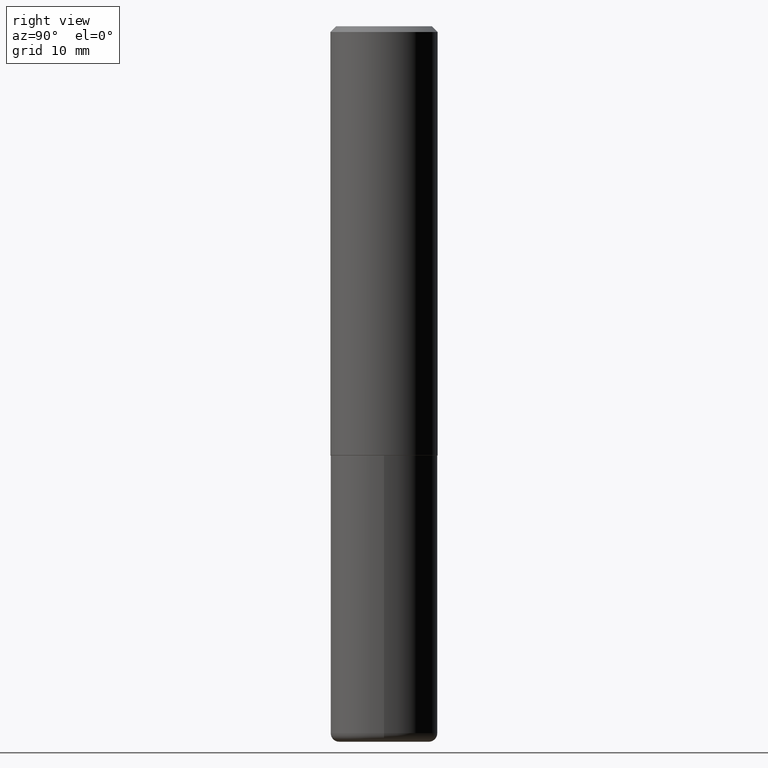
[diagram: clean part render]
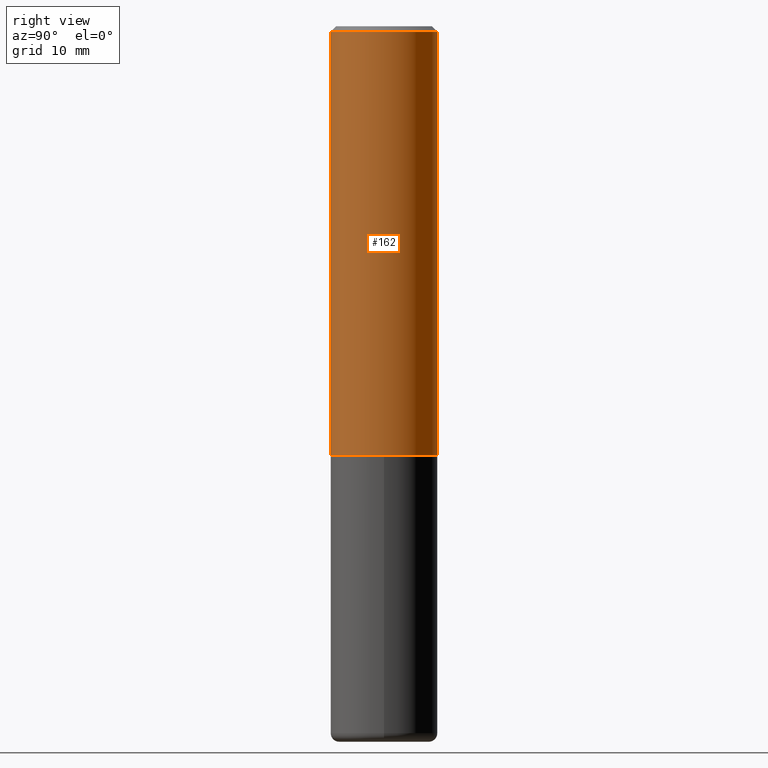
[diagram: same view with one face highlighted and labeled with its STEP entity id]
A machine part, right view. The second image highlights one B-rep face of the part: STEP entity #162.
In plain terms, the highlighted cylindrical surface (partial cylindrical patch) has radius 4.7625 mm, axis along (-0, 0, 1).
Its self-contained STEP definition (entity closure, byte-faithful):
#2 = EDGE_CURVE ( 'NONE', #31, #197, #258, .T. ) ;
#4 = CARTESIAN_POINT ( 'NONE',  ( 3.666321494475970828E-29, -5.232923199104616895E-15, -1.499000000000000110 ) ) ;
#31 = VERTEX_POINT ( 'NONE', #353 ) ;
#34 = DIRECTION ( 'NONE',  ( -6.982962677686266711E-15, -1.000000000000000000, 3.490942761243906423E-15 ) ) ;
#35 = VECTOR ( 'NONE', #391, 39.37007874015748143 ) ;
#52 = DIRECTION ( 'NONE',  ( -2.445844892912589156E-29, 3.490942761243906423E-15, 1.000000000000000000 ) ) ;
#58 = ORIENTED_EDGE ( 'NONE', *, *, #84, .T. ) ;
#69 = VERTEX_POINT ( 'NONE', #338 ) ;
#71 = AXIS2_PLACEMENT_3D ( 'NONE', #4, #104, #366 ) ;
#84 = EDGE_CURVE ( 'NONE', #197, #69, #226, .T. ) ;
#102 = ORIENTED_EDGE ( 'NONE', *, *, #108, .F. ) ;
#104 = DIRECTION ( 'NONE',  ( -2.445844892912588876E-29, 3.490942761243906817E-15, 1.000000000000000000 ) ) ;
#108 = EDGE_CURVE ( 'NONE', #136, #69, #299, .T. ) ;
#123 = CARTESIAN_POINT ( 'NONE',  ( 4.891689785825187560E-31, -6.981885522487828820E-17, -0.02000000000000004205 ) ) ;
#124 = AXIS2_PLACEMENT_3D ( 'NONE', #123, #256, #252 ) ;
#136 = VERTEX_POINT ( 'NONE', #336 ) ;
#143 = VECTOR ( 'NONE', #52, 39.37007874015748143 ) ;
#162 = ADVANCED_FACE ( 'NONE', ( #205 ), #273, .T. ) ;
#197 = VERTEX_POINT ( 'NONE', #296 ) ;
#205 = FACE_OUTER_BOUND ( 'NONE', #417, .T. ) ;
#226 = LINE ( 'NONE', #401, #143 ) ;
#244 = LINE ( 'NONE', #325, #35 ) ;
#247 = DIRECTION ( 'NONE',  ( -2.445844892912588876E-29, 3.490942761243906817E-15, 1.000000000000000000 ) ) ;
#251 = AXIS2_PLACEMENT_3D ( 'NONE', #358, #247, #34 ) ;
#252 = DIRECTION ( 'NONE',  ( -6.982962677686266711E-15, -1.000000000000000000, 3.483106191921935949E-15 ) ) ;
#256 = DIRECTION ( 'NONE',  ( -2.445844892912588876E-29, 3.490942761243906817E-15, 1.000000000000000000 ) ) ;
#258 = CIRCLE ( 'NONE', #71, 0.1875000000000001943 ) ;
#263 = ORIENTED_EDGE ( 'NONE', *, *, #2, .T. ) ;
#273 = CYLINDRICAL_SURFACE ( 'NONE', #251, 0.1875000000000000833 ) ;
#296 = CARTESIAN_POINT ( 'NONE',  ( 1.332267629550206781E-15, 0.1874999999999949485, -1.499000000000000554 ) ) ;
#299 = CIRCLE ( 'NONE', #124, 0.1874999999999999722 ) ;
#325 = CARTESIAN_POINT ( 'NONE',  ( -1.309305502066175600E-15, -0.1875000000000000833, 6.545517677332327747E-16 ) ) ;
#336 = CARTESIAN_POINT ( 'NONE',  ( -1.286343374582161379E-15, -0.1875000000000000555, -0.01999999999999938979 ) ) ;
#338 = CARTESIAN_POINT ( 'NONE',  ( 1.309305502066175205E-15, 0.1874999999999999167, -0.02000000000000069431 ) ) ;
#351 = ORIENTED_EDGE ( 'NONE', *, *, #396, .F. ) ;
#353 = CARTESIAN_POINT ( 'NONE',  ( -1.309305502066139509E-15, -0.1875000000000054123, -1.498999999999999444 ) ) ;
#358 = CARTESIAN_POINT ( 'NONE',  ( 0.000000000000000000, 0.000000000000000000, 0.000000000000000000 ) ) ;
#366 = DIRECTION ( 'NONE',  ( -6.982962677686265922E-15, -1.000000000000000000, 2.913971193241877611E-15 ) ) ;
#391 = DIRECTION ( 'NONE',  ( -2.445844892912589156E-29, 3.490942761243906423E-15, 1.000000000000000000 ) ) ;
#396 = EDGE_CURVE ( 'NONE', #31, #136, #244, .T. ) ;
#401 = CARTESIAN_POINT ( 'NONE',  ( 1.332267629550188243E-15, 0.1875000000000000833, -6.545517677332327747E-16 ) ) ;
#417 = EDGE_LOOP ( 'NONE', ( #263, #58, #102, #351 ) ) ;